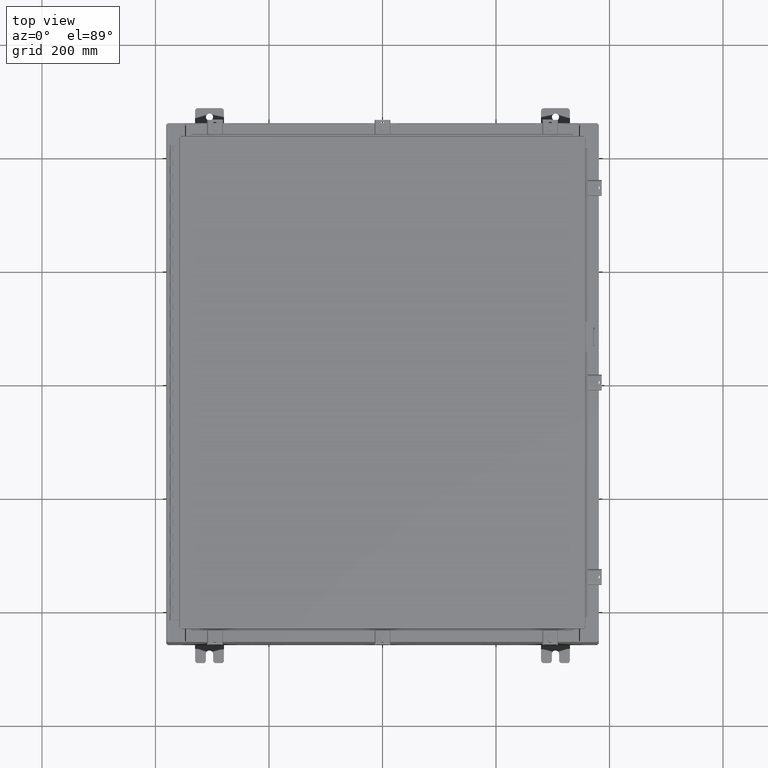
[diagram: clean part render]
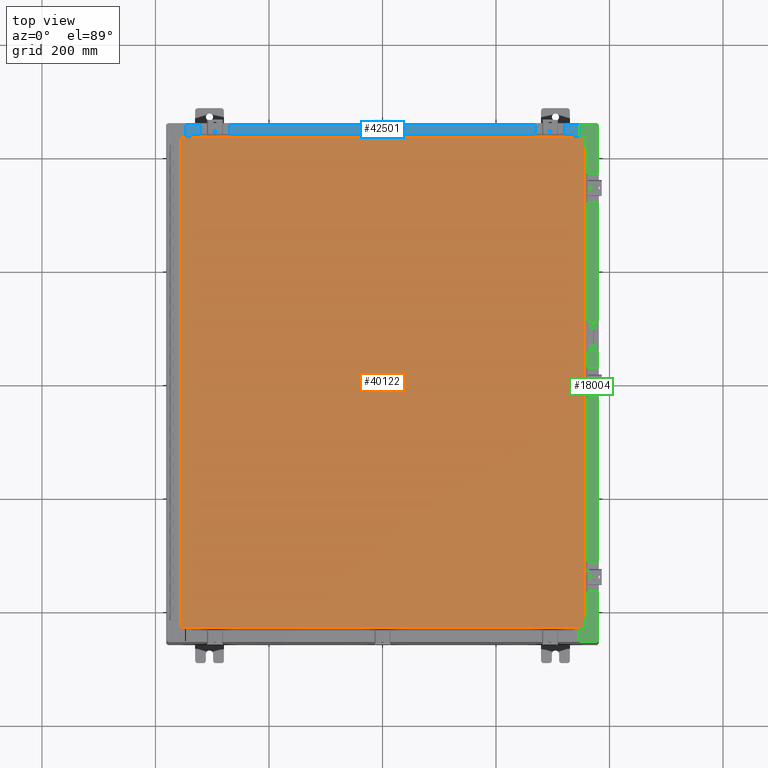
[diagram: same view with three faces highlighted in distinct colors, each labeled with its STEP entity id]
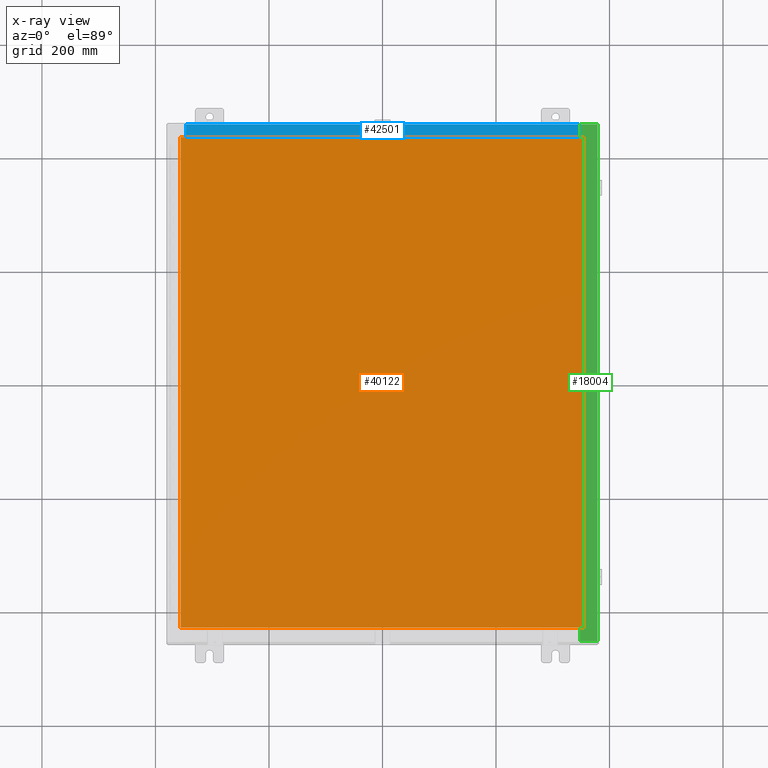
[diagram: x-ray of the same camera — body ghosted, the three highlighted faces saturated]
A machine part, top view with three faces highlighted in distinct colors.
The next image is the same camera in x-ray (body ghosted, the three faces saturated) — at least one of them is partly hidden behind the body in this view.
Their STEP definitions:

[orange] entity #40122 — the highlighted planar face has unit normal (0, 0, -1).
#2382 = VERTEX_POINT ( 'NONE', #12207 ) ;
#3186 = CARTESIAN_POINT ( 'NONE',  ( -13.99030000000000700, 17.00630000000000000, -2.048885995248197400E-016 ) ) ;
#8912 = EDGE_CURVE ( 'NONE', #22222, #2382, #23136, .T. ) ;
#10315 = EDGE_CURVE ( 'NONE', #28636, #22222, #16313, .T. ) ;
#11958 = EDGE_CURVE ( 'NONE', #2382, #24502, #40111, .T. ) ;
#12207 = CARTESIAN_POINT ( 'NONE',  ( 13.99029999999999200, 17.00630000000000300, -1.297627796990525000E-015 ) ) ;
#14335 = PLANE ( 'NONE',  #16233 ) ;
#15690 = ORIENTED_EDGE ( 'NONE', *, *, #41778, .T. ) ;
#16233 = AXIS2_PLACEMENT_3D ( 'NONE', #27350, #17639, #40972 ) ;
#16313 = LINE ( 'NONE', #42041, #32930 ) ;
#17639 = DIRECTION ( 'NONE',  ( 0.0000000000000000000, 0.0000000000000000000, -1.000000000000000000 ) ) ;
#19530 = DIRECTION ( 'NONE',  ( -1.000000000000000000, -0.0000000000000000000, -0.0000000000000000000 ) ) ;
#20052 = CARTESIAN_POINT ( 'NONE',  ( -13.99030000000000700, -17.00630000000000000, -2.048885995248197400E-016 ) ) ;
#20161 = CARTESIAN_POINT ( 'NONE',  ( 13.99029999999999200, 17.00630000000000300, -1.297627796990525000E-015 ) ) ;
#22222 = VERTEX_POINT ( 'NONE', #32562 ) ;
#22223 = VECTOR ( 'NONE', #35716, 39.37007874015748100 ) ;
#22385 = ORIENTED_EDGE ( 'NONE', *, *, #8912, .T. ) ;
#23136 = LINE ( 'NONE', #41770, #32000 ) ;
#24502 = VERTEX_POINT ( 'NONE', #3186 ) ;
#25161 = FACE_OUTER_BOUND ( 'NONE', #29579, .T. ) ;
#27350 = CARTESIAN_POINT ( 'NONE',  ( 0.0000000000000000000, 0.0000000000000000000, 0.0000000000000000000 ) ) ;
#28636 = VERTEX_POINT ( 'NONE', #20052 ) ;
#29579 = EDGE_LOOP ( 'NONE', ( #41204, #22385, #38496, #15690 ) ) ;
#32000 = VECTOR ( 'NONE', #41348, 39.37007874015748100 ) ;
#32562 = CARTESIAN_POINT ( 'NONE',  ( 13.99029999999999200, -17.00630000000000000, -2.048885995248197400E-016 ) ) ;
#32930 = VECTOR ( 'NONE', #41078, 39.37007874015748100 ) ;
#35716 = DIRECTION ( 'NONE',  ( 0.0000000000000000000, -1.000000000000000000, 0.0000000000000000000 ) ) ;
#38496 = ORIENTED_EDGE ( 'NONE', *, *, #11958, .T. ) ;
#38925 = CARTESIAN_POINT ( 'NONE',  ( -13.99030000000000700, 17.00630000000000000, -2.048885995248197400E-016 ) ) ;
#39040 = VECTOR ( 'NONE', #19530, 39.37007874015748100 ) ;
#40111 = LINE ( 'NONE', #20161, #39040 ) ;
#40122 = ADVANCED_FACE ( 'NONE', ( #25161 ), #14335, .F. ) ;
#40972 = DIRECTION ( 'NONE',  ( -1.000000000000000000, 0.0000000000000000000, -0.0000000000000000000 ) ) ;
#41056 = LINE ( 'NONE', #38925, #22223 ) ;
#41078 = DIRECTION ( 'NONE',  ( 1.000000000000000000, -0.0000000000000000000, -0.0000000000000000000 ) ) ;
#41204 = ORIENTED_EDGE ( 'NONE', *, *, #10315, .T. ) ;
#41348 = DIRECTION ( 'NONE',  ( 0.0000000000000000000, 1.000000000000000000, 0.0000000000000000000 ) ) ;
#41770 = CARTESIAN_POINT ( 'NONE',  ( 13.99029999999999200, -17.00630000000000000, -2.048885995248197400E-016 ) ) ;
#41778 = EDGE_CURVE ( 'NONE', #24502, #28636, #41056, .T. ) ;
#42041 = CARTESIAN_POINT ( 'NONE',  ( -13.99030000000000700, -17.00630000000000000, -2.048885995248197400E-016 ) ) ;

[blue] entity #42501 — the highlighted planar face has unit normal (0, 0, 1).
#7 = VECTOR ( 'NONE', #4413, 39.37007874015748100 ) ;
#919 = VERTEX_POINT ( 'NONE', #6233 ) ;
#3161 = EDGE_CURVE ( 'NONE', #4439, #919, #27183, .T. ) ;
#4413 = DIRECTION ( 'NONE',  ( -1.000000000000000000, 0.0000000000000000000, 0.0000000000000000000 ) ) ;
#4439 = VERTEX_POINT ( 'NONE', #39745 ) ;
#4495 = CARTESIAN_POINT ( 'NONE',  ( 13.63720000000000400, -1.287299999999999900, 6.000000000000003600 ) ) ;
#5684 = DIRECTION ( 'NONE',  ( -0.0000000000000000000, 1.000000000000000000, -3.566381192773190000E-015 ) ) ;
#5892 = CARTESIAN_POINT ( 'NONE',  ( -13.63719999999999800, -0.07469999999999973900, 5.999999999999999100 ) ) ;
#6233 = CARTESIAN_POINT ( 'NONE',  ( -13.63719999999999800, -0.08769999999999972300, 5.999999999999999100 ) ) ;
#6553 = AXIS2_PLACEMENT_3D ( 'NONE', #39462, #19469, #42846 ) ;
#7269 = EDGE_CURVE ( 'NONE', #8396, #919, #38414, .T. ) ;
#7978 = VECTOR ( 'NONE', #19514, 39.37007874015748100 ) ;
#8396 = VERTEX_POINT ( 'NONE', #28632 ) ;
#14820 = CARTESIAN_POINT ( 'NONE',  ( 13.63720000000000400, -1.287299999999999900, 6.000000000000003600 ) ) ;
#15018 = DIRECTION ( 'NONE',  ( -1.000000000000000000, 4.006464660875052000E-017, -1.428858021605520200E-031 ) ) ;
#15098 = CARTESIAN_POINT ( 'NONE',  ( -3.513669507588266700E-018, -0.08769999999999972300, 5.999999999999999100 ) ) ;
#16030 = ORIENTED_EDGE ( 'NONE', *, *, #7269, .T. ) ;
#16206 = PLANE ( 'NONE',  #6553 ) ;
#17539 = EDGE_CURVE ( 'NONE', #18886, #4439, #34442, .T. ) ;
#18886 = VERTEX_POINT ( 'NONE', #14820 ) ;
#19469 = DIRECTION ( 'NONE',  ( 0.0000000000000000000, 3.566381192773190000E-015, 1.000000000000000000 ) ) ;
#19514 = DIRECTION ( 'NONE',  ( -0.0000000000000000000, -1.000000000000000000, 3.566381192773190000E-015 ) ) ;
#27183 = LINE ( 'NONE', #5892, #35022 ) ;
#27614 = ORIENTED_EDGE ( 'NONE', *, *, #29630, .F. ) ;
#28632 = CARTESIAN_POINT ( 'NONE',  ( 13.63720000000000400, -0.08769999999999937600, 5.999999999999999100 ) ) ;
#28967 = EDGE_LOOP ( 'NONE', ( #37795, #41546, #27614, #16030 ) ) ;
#29494 = VECTOR ( 'NONE', #15018, 39.37007874015748100 ) ;
#29630 = EDGE_CURVE ( 'NONE', #8396, #18886, #32363, .T. ) ;
#32363 = LINE ( 'NONE', #39513, #7978 ) ;
#34442 = LINE ( 'NONE', #4495, #7 ) ;
#35022 = VECTOR ( 'NONE', #5684, 39.37007874015748100 ) ;
#37795 = ORIENTED_EDGE ( 'NONE', *, *, #3161, .F. ) ;
#38341 = FACE_OUTER_BOUND ( 'NONE', #28967, .T. ) ;
#38414 = LINE ( 'NONE', #15098, #29494 ) ;
#39462 = CARTESIAN_POINT ( 'NONE',  ( 0.0000000000000000000, 2.139269213755056400E-014, 5.999999999999999100 ) ) ;
#39513 = CARTESIAN_POINT ( 'NONE',  ( 13.63720000000000400, -1.300299999999999800, 6.000000000000003600 ) ) ;
#39745 = CARTESIAN_POINT ( 'NONE',  ( -13.63719999999999800, -1.287299999999999200, 6.000000000000003600 ) ) ;
#41546 = ORIENTED_EDGE ( 'NONE', *, *, #17539, .F. ) ;
#42501 = ADVANCED_FACE ( 'NONE', ( #38341 ), #16206, .T. ) ;
#42846 = DIRECTION ( 'NONE',  ( 0.0000000000000000000, -1.000000000000000000, 3.566381192773190000E-015 ) ) ;

[green] entity #18004 — the highlighted planar face has unit normal (-0, 0, -1).
#55 = VECTOR ( 'NONE', #30178, 39.37007874015748100 ) ;
#749 = CARTESIAN_POINT ( 'NONE',  ( 13.75005000000004300, -16.59375000000000000, 11.92530000000000900 ) ) ;
#991 = DIRECTION ( 'NONE',  ( 7.132762385546384700E-015, 0.0000000000000000000, 1.000000000000000000 ) ) ;
#1049 = ORIENTED_EDGE ( 'NONE', *, *, #14176, .F. ) ;
#2265 = ORIENTED_EDGE ( 'NONE', *, *, #26659, .F. ) ;
#2490 = VECTOR ( 'NONE', #38512, 39.37007874015748100 ) ;
#2561 = CARTESIAN_POINT ( 'NONE',  ( 13.71270000000004300, -16.59375000000000000, 11.92530000000000900 ) ) ;
#2691 = DIRECTION ( 'NONE',  ( -1.000000000000000000, 4.340572780399910900E-014, 0.0000000000000000000 ) ) ;
#2911 = CARTESIAN_POINT ( 'NONE',  ( 13.75005000000004300, 16.59375000000000000, 11.92530000000000900 ) ) ;
#3389 = EDGE_CURVE ( 'NONE', #39568, #42905, #18844, .T. ) ;
#3850 = VECTOR ( 'NONE', #10107, 39.37007874015748100 ) ;
#3941 = EDGE_CURVE ( 'NONE', #31821, #13877, #32348, .T. ) ;
#4039 = ORIENTED_EDGE ( 'NONE', *, *, #3389, .T. ) ;
#4255 = ORIENTED_EDGE ( 'NONE', *, *, #30948, .T. ) ;
#5512 = VECTOR ( 'NONE', #2691, 39.37007874015748100 ) ;
#5643 = VECTOR ( 'NONE', #35042, 39.37007874015748100 ) ;
#5763 = VERTEX_POINT ( 'NONE', #34822 ) ;
#6716 = LINE ( 'NONE', #11844, #5643 ) ;
#7151 = DIRECTION ( 'NONE',  ( 7.132762385546384700E-015, 0.0000000000000000000, 1.000000000000000000 ) ) ;
#8519 = FACE_OUTER_BOUND ( 'NONE', #27060, .T. ) ;
#9969 = LINE ( 'NONE', #17093, #11001 ) ;
#10107 = DIRECTION ( 'NONE',  ( 1.000000000000000000, 0.0000000000000000000, 0.0000000000000000000 ) ) ;
#11001 = VECTOR ( 'NONE', #36872, 39.37007874015748100 ) ;
#11465 = LINE ( 'NONE', #11942, #2490 ) ;
#11844 = CARTESIAN_POINT ( 'NONE',  ( 13.75005000000004300, -16.59375000000000000, 11.92530000000000900 ) ) ;
#11942 = CARTESIAN_POINT ( 'NONE',  ( 13.69970000000004100, 0.0000000000000000000, 11.92530000000000900 ) ) ;
#12511 = LINE ( 'NONE', #42426, #37950 ) ;
#12812 = AXIS2_PLACEMENT_3D ( 'NONE', #39747, #39591, #39533 ) ;
#12983 = ORIENTED_EDGE ( 'NONE', *, *, #16810, .F. ) ;
#13197 = ORIENTED_EDGE ( 'NONE', *, *, #3941, .F. ) ;
#13628 = VERTEX_POINT ( 'NONE', #2911 ) ;
#13877 = VERTEX_POINT ( 'NONE', #35866 ) ;
#14176 = EDGE_CURVE ( 'NONE', #34653, #5763, #20117, .T. ) ;
#14568 = DIRECTION ( 'NONE',  ( 1.000000000000000000, 4.340572780399910900E-014, 0.0000000000000000000 ) ) ;
#15072 = CARTESIAN_POINT ( 'NONE',  ( 13.71270000000004300, -16.59375000000000000, 11.92530000000000900 ) ) ;
#15168 = CARTESIAN_POINT ( 'NONE',  ( 13.75005000000004300, 16.63110000000000000, 11.92530000000000900 ) ) ;
#15268 = DIRECTION ( 'NONE',  ( -0.0000000000000000000, 1.000000000000000000, -0.0000000000000000000 ) ) ;
#15528 = CARTESIAN_POINT ( 'NONE',  ( 13.69970000000004100, -16.63110000000000400, 11.92530000000000900 ) ) ;
#16623 = VERTEX_POINT ( 'NONE', #749 ) ;
#16810 = EDGE_CURVE ( 'NONE', #39568, #25640, #19366, .T. ) ;
#17093 = CARTESIAN_POINT ( 'NONE',  ( 13.69970000000004100, 0.0000000000000000000, 11.92530000000000900 ) ) ;
#18004 = ADVANCED_FACE ( 'NONE', ( #8519 ), #39800, .F. ) ;
#18844 = LINE ( 'NONE', #30037, #55 ) ;
#19366 = LINE ( 'NONE', #24302, #42888 ) ;
#19372 = EDGE_CURVE ( 'NONE', #13877, #16623, #34855, .T. ) ;
#20117 = LINE ( 'NONE', #15072, #25864 ) ;
#20682 = CARTESIAN_POINT ( 'NONE',  ( 14.91230000000003900, 17.92530000000000000, 11.92530000000000000 ) ) ;
#20936 = CARTESIAN_POINT ( 'NONE',  ( 13.75005000000004300, -16.61242500000000200, 11.92530000000000900 ) ) ;
#21753 = CARTESIAN_POINT ( 'NONE',  ( 13.69970000000004100, -16.63110000000000400, 11.92530000000000900 ) ) ;
#22965 = ORIENTED_EDGE ( 'NONE', *, *, #43169, .F. ) ;
#23486 = VECTOR ( 'NONE', #14568, 39.37007874015748100 ) ;
#24289 = DIRECTION ( 'NONE',  ( 1.000000000000000000, 0.0000000000000000000, 0.0000000000000000000 ) ) ;
#24302 = CARTESIAN_POINT ( 'NONE',  ( 14.91230000000003900, -17.92530000000000000, 11.92530000000000000 ) ) ;
#24843 = EDGE_CURVE ( 'NONE', #31821, #27581, #11465, .T. ) ;
#25473 = DIRECTION ( 'NONE',  ( -0.0000000000000000000, -1.000000000000000000, -0.0000000000000000000 ) ) ;
#25640 = VERTEX_POINT ( 'NONE', #33362 ) ;
#25762 = DIRECTION ( 'NONE',  ( 1.000000000000000000, 0.0000000000000000000, -7.132762385546384700E-015 ) ) ;
#25864 = VECTOR ( 'NONE', #15268, 39.37007874015748100 ) ;
#26414 = AXIS2_PLACEMENT_3D ( 'NONE', #20936, #991, #24289 ) ;
#26571 = CARTESIAN_POINT ( 'NONE',  ( 13.71270000000004300, 16.59375000000000000, 11.92530000000000900 ) ) ;
#26659 = EDGE_CURVE ( 'NONE', #34528, #27010, #32039, .T. ) ;
#26902 = ORIENTED_EDGE ( 'NONE', *, *, #27464, .F. ) ;
#26984 = CARTESIAN_POINT ( 'NONE',  ( 13.75005000000004300, 16.61242500000000200, 11.92530000000000900 ) ) ;
#27010 = VERTEX_POINT ( 'NONE', #41137 ) ;
#27060 = EDGE_LOOP ( 'NONE', ( #13197, #32658, #37346, #12983, #4039, #4255, #2265, #22965, #26902, #1049, #33767, #39060 ) ) ;
#27464 = EDGE_CURVE ( 'NONE', #5763, #13628, #30387, .T. ) ;
#27581 = VERTEX_POINT ( 'NONE', #33579 ) ;
#28756 = CARTESIAN_POINT ( 'NONE',  ( 13.69970000000004100, 17.92530000000000000, 11.92530000000000900 ) ) ;
#29340 = AXIS2_PLACEMENT_3D ( 'NONE', #26984, #7151, #30355 ) ;
#30037 = CARTESIAN_POINT ( 'NONE',  ( 8.532114493236863100E-014, 17.92530000000000000, 11.92530000000010800 ) ) ;
#30178 = DIRECTION ( 'NONE',  ( -1.000000000000000000, 0.0000000000000000000, 7.132762385546384700E-015 ) ) ;
#30355 = DIRECTION ( 'NONE',  ( 1.000000000000000000, 0.0000000000000000000, 0.0000000000000000000 ) ) ;
#30387 = LINE ( 'NONE', #26571, #3850 ) ;
#30948 = EDGE_CURVE ( 'NONE', #42905, #27010, #9969, .T. ) ;
#31821 = VERTEX_POINT ( 'NONE', #21753 ) ;
#32039 = LINE ( 'NONE', #42634, #5512 ) ;
#32348 = LINE ( 'NONE', #15528, #23486 ) ;
#32658 = ORIENTED_EDGE ( 'NONE', *, *, #24843, .T. ) ;
#33362 = CARTESIAN_POINT ( 'NONE',  ( 14.91230000000003900, -17.92530000000000000, 11.92530000000000000 ) ) ;
#33579 = CARTESIAN_POINT ( 'NONE',  ( 13.69970000000004100, -17.92530000000000000, 11.92530000000000900 ) ) ;
#33767 = ORIENTED_EDGE ( 'NONE', *, *, #37268, .F. ) ;
#34528 = VERTEX_POINT ( 'NONE', #15168 ) ;
#34653 = VERTEX_POINT ( 'NONE', #2561 ) ;
#34822 = CARTESIAN_POINT ( 'NONE',  ( 13.71270000000004300, 16.59375000000000000, 11.92530000000000900 ) ) ;
#34855 = CIRCLE ( 'NONE', #26414, 0.01867499999999949400 ) ;
#35042 = DIRECTION ( 'NONE',  ( -1.000000000000000000, 0.0000000000000000000, 0.0000000000000000000 ) ) ;
#35866 = CARTESIAN_POINT ( 'NONE',  ( 13.75005000000004300, -16.63110000000000000, 11.92530000000000900 ) ) ;
#36853 = EDGE_CURVE ( 'NONE', #27581, #25640, #12511, .T. ) ;
#36872 = DIRECTION ( 'NONE',  ( 0.0000000000000000000, -1.000000000000000000, 0.0000000000000000000 ) ) ;
#37268 = EDGE_CURVE ( 'NONE', #16623, #34653, #6716, .T. ) ;
#37346 = ORIENTED_EDGE ( 'NONE', *, *, #36853, .T. ) ;
#37950 = VECTOR ( 'NONE', #25762, 39.37007874015748100 ) ;
#38512 = DIRECTION ( 'NONE',  ( 0.0000000000000000000, -1.000000000000000000, 0.0000000000000000000 ) ) ;
#39060 = ORIENTED_EDGE ( 'NONE', *, *, #19372, .F. ) ;
#39533 = DIRECTION ( 'NONE',  ( -1.000000000000000000, 0.0000000000000000000, 7.132762385546384700E-015 ) ) ;
#39568 = VERTEX_POINT ( 'NONE', #20682 ) ;
#39591 = DIRECTION ( 'NONE',  ( -7.132762385546384700E-015, 0.0000000000000000000, -1.000000000000000000 ) ) ;
#39747 = CARTESIAN_POINT ( 'NONE',  ( 8.532114493236863100E-014, 0.0000000000000000000, 11.92530000000010800 ) ) ;
#39800 = PLANE ( 'NONE',  #12812 ) ;
#40932 = CIRCLE ( 'NONE', #29340, 0.01867499999999949400 ) ;
#41137 = CARTESIAN_POINT ( 'NONE',  ( 13.69970000000004100, 16.63110000000000400, 11.92530000000000900 ) ) ;
#42426 = CARTESIAN_POINT ( 'NONE',  ( 8.532114493236863100E-014, -17.92530000000000000, 11.92530000000010800 ) ) ;
#42634 = CARTESIAN_POINT ( 'NONE',  ( 13.75005000000004300, 16.63110000000000000, 11.92530000000000900 ) ) ;
#42888 = VECTOR ( 'NONE', #25473, 39.37007874015748100 ) ;
#42905 = VERTEX_POINT ( 'NONE', #28756 ) ;
#43169 = EDGE_CURVE ( 'NONE', #13628, #34528, #40932, .T. ) ;